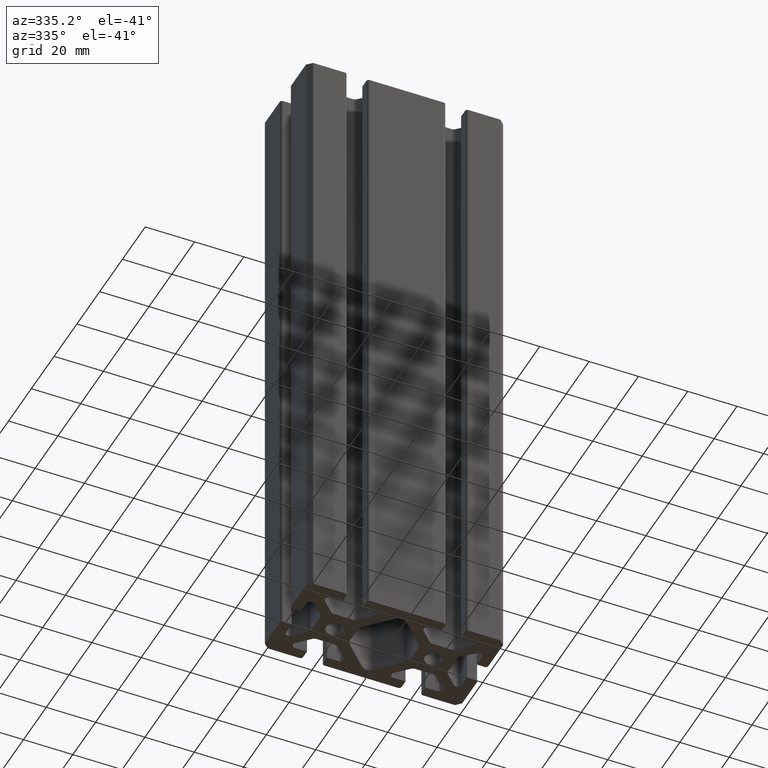
[diagram: clean part render]
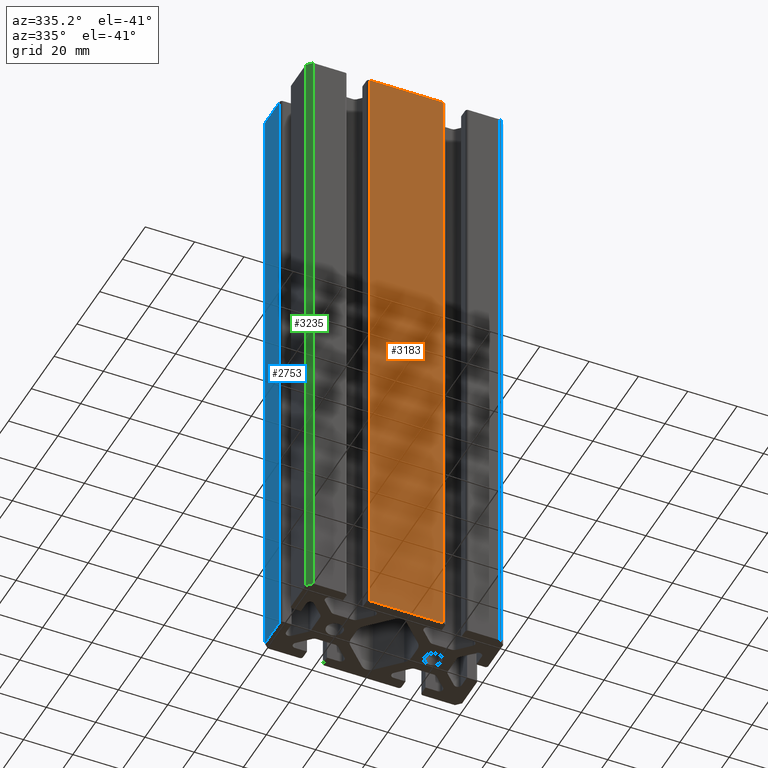
[diagram: same view with three faces highlighted in distinct colors, each labeled with its STEP entity id]
A machine part, auxiliary view with three faces highlighted in distinct colors.
Their STEP definitions:

[orange] entity #3183 — the highlighted planar face has unit normal (0, -1, 0).
#48 = EDGE_CURVE ( 'NONE', #249, #2814, #3694, .T. ) ;
#109 = LINE ( 'NONE', #1936, #3686 ) ;
#249 = VERTEX_POINT ( 'NONE', #1832 ) ;
#609 = ORIENTED_EDGE ( 'NONE', *, *, #1813, .T. ) ;
#641 = ORIENTED_EDGE ( 'NONE', *, *, #3752, .T. ) ;
#913 = DIRECTION ( 'NONE',  ( 1.000000000000000000, 1.301042606982605567E-16, 0.000000000000000000 ) ) ;
#979 = VECTOR ( 'NONE', #1280, 1000.000000000000000 ) ;
#1218 = FACE_OUTER_BOUND ( 'NONE', #1561, .T. ) ;
#1239 = CARTESIAN_POINT ( 'NONE',  ( 2.602085213965211825E-15, -20.00000000000000355, 127.0000000000000000 ) ) ;
#1280 = DIRECTION ( 'NONE',  ( -1.000000000000000000, -1.301042606982605567E-16, 0.000000000000000000 ) ) ;
#1299 = VERTEX_POINT ( 'NONE', #1701 ) ;
#1302 = CARTESIAN_POINT ( 'NONE',  ( 14.95670735036554255, -20.00000000000000000, 127.0000000000000000 ) ) ;
#1561 = EDGE_LOOP ( 'NONE', ( #2591, #641, #2480, #609 ) ) ;
#1701 = CARTESIAN_POINT ( 'NONE',  ( -14.95670735036554255, -20.00000000000000711, 127.0000000000000000 ) ) ;
#1813 = EDGE_CURVE ( 'NONE', #249, #3131, #2765, .T. ) ;
#1832 = CARTESIAN_POINT ( 'NONE',  ( 14.95670735036554255, -20.00000000000000000, -127.0000000000000000 ) ) ;
#1920 = AXIS2_PLACEMENT_3D ( 'NONE', #1239, #3687, #913 ) ;
#1936 = CARTESIAN_POINT ( 'NONE',  ( -14.95670735036554255, -20.00000000000000711, 127.0000000000000000 ) ) ;
#1975 = VECTOR ( 'NONE', #3774, 1000.000000000000000 ) ;
#1993 = DIRECTION ( 'NONE',  ( -0.000000000000000000, -0.000000000000000000, -1.000000000000000000 ) ) ;
#2280 = LINE ( 'NONE', #2942, #3305 ) ;
#2480 = ORIENTED_EDGE ( 'NONE', *, *, #48, .F. ) ;
#2591 = ORIENTED_EDGE ( 'NONE', *, *, #2829, .T. ) ;
#2623 = CARTESIAN_POINT ( 'NONE',  ( -14.95670735036554255, -20.00000000000000711, -127.0000000000000000 ) ) ;
#2690 = PLANE ( 'NONE',  #1920 ) ;
#2765 = LINE ( 'NONE', #3720, #1975 ) ;
#2814 = VERTEX_POINT ( 'NONE', #2623 ) ;
#2816 = CARTESIAN_POINT ( 'NONE',  ( 2.602085213965211825E-15, -20.00000000000000355, -127.0000000000000000 ) ) ;
#2829 = EDGE_CURVE ( 'NONE', #3131, #1299, #2280, .T. ) ;
#2942 = CARTESIAN_POINT ( 'NONE',  ( 2.602085213965211825E-15, -20.00000000000000355, 127.0000000000000000 ) ) ;
#3131 = VERTEX_POINT ( 'NONE', #1302 ) ;
#3183 = ADVANCED_FACE ( 'NONE', ( #1218 ), #2690, .T. ) ;
#3198 = DIRECTION ( 'NONE',  ( -1.000000000000000000, -1.301042606982605567E-16, 0.000000000000000000 ) ) ;
#3305 = VECTOR ( 'NONE', #3198, 1000.000000000000000 ) ;
#3686 = VECTOR ( 'NONE', #1993, 1000.000000000000000 ) ;
#3687 = DIRECTION ( 'NONE',  ( 1.301042606982605567E-16, -1.000000000000000000, 0.000000000000000000 ) ) ;
#3694 = LINE ( 'NONE', #2816, #979 ) ;
#3720 = CARTESIAN_POINT ( 'NONE',  ( 14.95670735036554255, -20.00000000000000000, 127.0000000000000000 ) ) ;
#3752 = EDGE_CURVE ( 'NONE', #1299, #2814, #109, .T. ) ;
#3774 = DIRECTION ( 'NONE',  ( -0.000000000000000000, 0.000000000000000000, 1.000000000000000000 ) ) ;

[blue] entity #2753 — the highlighted planar face has unit normal (-1, 0, 0).
#4 = VERTEX_POINT ( 'NONE', #3648 ) ;
#256 = VECTOR ( 'NONE', #3365, 1000.000000000000000 ) ;
#276 = VECTOR ( 'NONE', #1864, 1000.000000000000000 ) ;
#375 = DIRECTION ( 'NONE',  ( 0.000000000000000000, 0.000000000000000000, 1.000000000000000000 ) ) ;
#386 = LINE ( 'NONE', #1581, #276 ) ;
#396 = FACE_OUTER_BOUND ( 'NONE', #2638, .T. ) ;
#415 = AXIS2_PLACEMENT_3D ( 'NONE', #3126, #2551, #375 ) ;
#474 = ORIENTED_EDGE ( 'NONE', *, *, #3062, .T. ) ;
#515 = VECTOR ( 'NONE', #2713, 1000.000000000000000 ) ;
#566 = CARTESIAN_POINT ( 'NONE',  ( -39.99999999999998579, 17.98525110029820340, 127.0000000000000000 ) ) ;
#673 = PLANE ( 'NONE',  #415 ) ;
#830 = EDGE_CURVE ( 'NONE', #4, #1542, #386, .T. ) ;
#861 = VERTEX_POINT ( 'NONE', #1885 ) ;
#1166 = ORIENTED_EDGE ( 'NONE', *, *, #830, .F. ) ;
#1477 = CARTESIAN_POINT ( 'NONE',  ( -39.99999999999998579, 0.000000000000000000, 127.0000000000000000 ) ) ;
#1542 = VERTEX_POINT ( 'NONE', #1687 ) ;
#1581 = CARTESIAN_POINT ( 'NONE',  ( -39.99999999999998579, 0.000000000000000000, -127.0000000000000000 ) ) ;
#1583 = DIRECTION ( 'NONE',  ( 0.000000000000000000, 0.000000000000000000, 1.000000000000000000 ) ) ;
#1620 = CARTESIAN_POINT ( 'NONE',  ( -39.99999999999998579, 5.068292729659862772, 127.0000000000000000 ) ) ;
#1629 = EDGE_CURVE ( 'NONE', #2959, #1542, #2668, .T. ) ;
#1687 = CARTESIAN_POINT ( 'NONE',  ( -39.99999999999998579, 17.98525110029820340, -127.0000000000000000 ) ) ;
#1864 = DIRECTION ( 'NONE',  ( 0.000000000000000000, 1.000000000000000000, -0.000000000000000000 ) ) ;
#1885 = CARTESIAN_POINT ( 'NONE',  ( -39.99999999999998579, 5.068292729659862772, 127.0000000000000000 ) ) ;
#1965 = ORIENTED_EDGE ( 'NONE', *, *, #3561, .T. ) ;
#2424 = CARTESIAN_POINT ( 'NONE',  ( -39.99999999999998579, 17.98525110029820340, 127.0000000000000000 ) ) ;
#2431 = LINE ( 'NONE', #1477, #515 ) ;
#2541 = ORIENTED_EDGE ( 'NONE', *, *, #1629, .T. ) ;
#2551 = DIRECTION ( 'NONE',  ( -1.000000000000000000, 0.000000000000000000, 0.000000000000000000 ) ) ;
#2638 = EDGE_LOOP ( 'NONE', ( #1166, #474, #1965, #2541 ) ) ;
#2668 = LINE ( 'NONE', #2424, #256 ) ;
#2713 = DIRECTION ( 'NONE',  ( 0.000000000000000000, 1.000000000000000000, -0.000000000000000000 ) ) ;
#2753 = ADVANCED_FACE ( 'NONE', ( #396 ), #673, .T. ) ;
#2959 = VERTEX_POINT ( 'NONE', #566 ) ;
#3062 = EDGE_CURVE ( 'NONE', #4, #861, #3721, .T. ) ;
#3126 = CARTESIAN_POINT ( 'NONE',  ( -39.99999999999998579, 0.000000000000000000, 127.0000000000000000 ) ) ;
#3365 = DIRECTION ( 'NONE',  ( -0.000000000000000000, -0.000000000000000000, -1.000000000000000000 ) ) ;
#3466 = VECTOR ( 'NONE', #1583, 1000.000000000000000 ) ;
#3561 = EDGE_CURVE ( 'NONE', #861, #2959, #2431, .T. ) ;
#3648 = CARTESIAN_POINT ( 'NONE',  ( -39.99999999999998579, 5.068292729659862772, -127.0000000000000000 ) ) ;
#3721 = LINE ( 'NONE', #1620, #3466 ) ;

[green] entity #3235 — the highlighted planar face has unit normal (0.7071, 0.7071, -0).
#2 = EDGE_CURVE ( 'NONE', #713, #2039, #634, .T. ) ;
#104 = LINE ( 'NONE', #803, #1424 ) ;
#242 = CARTESIAN_POINT ( 'NONE',  ( -28.99512787602869679, -28.99512457672832966, 127.0000000000000000 ) ) ;
#326 = AXIS2_PLACEMENT_3D ( 'NONE', #591, #3348, #3042 ) ;
#582 = EDGE_CURVE ( 'NONE', #3323, #3089, #104, .T. ) ;
#591 = CARTESIAN_POINT ( 'NONE',  ( -28.99512787602869679, -28.99512457672832966, 127.0000000000000000 ) ) ;
#634 = LINE ( 'NONE', #2796, #3623 ) ;
#713 = VERTEX_POINT ( 'NONE', #3133 ) ;
#803 = CARTESIAN_POINT ( 'NONE',  ( -39.99999999999998579, -17.99025120053346072, 127.0000000000000000 ) ) ;
#895 = DIRECTION ( 'NONE',  ( -0.000000000000000000, -0.000000000000000000, -1.000000000000000000 ) ) ;
#942 = ORIENTED_EDGE ( 'NONE', *, *, #582, .T. ) ;
#1225 = VECTOR ( 'NONE', #1415, 1000.000000000000114 ) ;
#1321 = CARTESIAN_POINT ( 'NONE',  ( -39.99999999999998579, -17.99025120053346072, -127.0000000000000000 ) ) ;
#1415 = DIRECTION ( 'NONE',  ( 0.7071067409563771555, -0.7071068214167154364, 0.000000000000000000 ) ) ;
#1424 = VECTOR ( 'NONE', #3156, 1000.000000000000000 ) ;
#1718 = CARTESIAN_POINT ( 'NONE',  ( -37.99025142921892950, -20.00000000000001066, -127.0000000000000000 ) ) ;
#1816 = PLANE ( 'NONE',  #326 ) ;
#1855 = VECTOR ( 'NONE', #1916, 1000.000000000000114 ) ;
#1916 = DIRECTION ( 'NONE',  ( 0.7071067409563771555, -0.7071068214167154364, 0.000000000000000000 ) ) ;
#1971 = LINE ( 'NONE', #2281, #1855 ) ;
#2039 = VERTEX_POINT ( 'NONE', #1718 ) ;
#2059 = FACE_OUTER_BOUND ( 'NONE', #3578, .T. ) ;
#2281 = CARTESIAN_POINT ( 'NONE',  ( -28.99512787602869679, -28.99512457672832966, -127.0000000000000000 ) ) ;
#2796 = CARTESIAN_POINT ( 'NONE',  ( -37.99025142921892950, -20.00000000000001066, 127.0000000000000000 ) ) ;
#2819 = ORIENTED_EDGE ( 'NONE', *, *, #3856, .T. ) ;
#2885 = CARTESIAN_POINT ( 'NONE',  ( -39.99999999999998579, -17.99025120053346072, 127.0000000000000000 ) ) ;
#2896 = ORIENTED_EDGE ( 'NONE', *, *, #2, .F. ) ;
#3028 = ORIENTED_EDGE ( 'NONE', *, *, #3512, .F. ) ;
#3042 = DIRECTION ( 'NONE',  ( -0.7071067409563771555, 0.7071068214167154364, 0.000000000000000000 ) ) ;
#3089 = VERTEX_POINT ( 'NONE', #1321 ) ;
#3133 = CARTESIAN_POINT ( 'NONE',  ( -37.99025142921892950, -20.00000000000001066, 127.0000000000000000 ) ) ;
#3156 = DIRECTION ( 'NONE',  ( -0.000000000000000000, -0.000000000000000000, -1.000000000000000000 ) ) ;
#3235 = ADVANCED_FACE ( 'NONE', ( #2059 ), #1816, .F. ) ;
#3247 = LINE ( 'NONE', #242, #1225 ) ;
#3323 = VERTEX_POINT ( 'NONE', #2885 ) ;
#3348 = DIRECTION ( 'NONE',  ( 0.7071068214167155475, 0.7071067409563772665, -0.000000000000000000 ) ) ;
#3512 = EDGE_CURVE ( 'NONE', #3323, #713, #3247, .T. ) ;
#3578 = EDGE_LOOP ( 'NONE', ( #2819, #2896, #3028, #942 ) ) ;
#3623 = VECTOR ( 'NONE', #895, 1000.000000000000000 ) ;
#3856 = EDGE_CURVE ( 'NONE', #3089, #2039, #1971, .T. ) ;